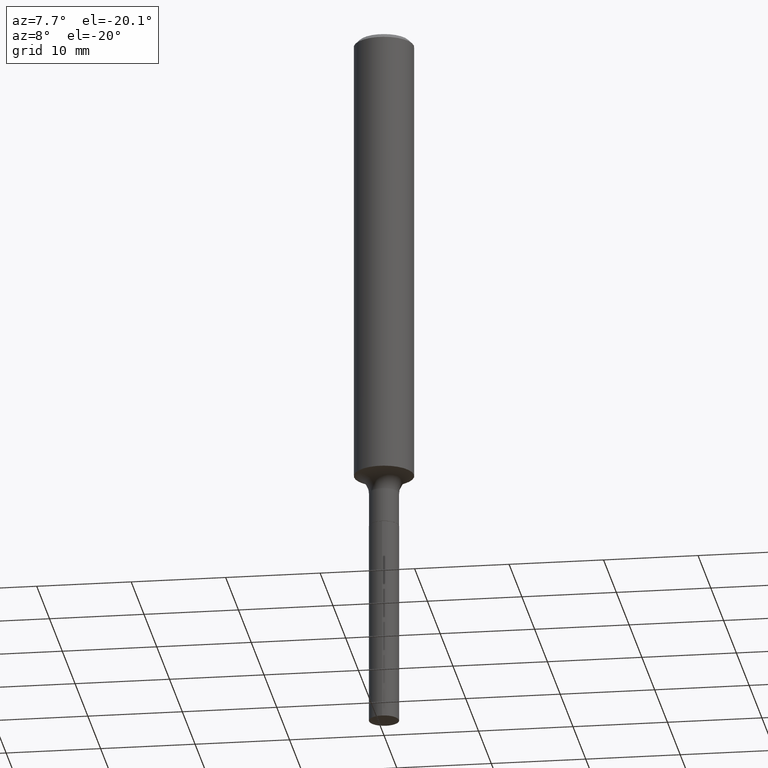
[diagram: clean part render]
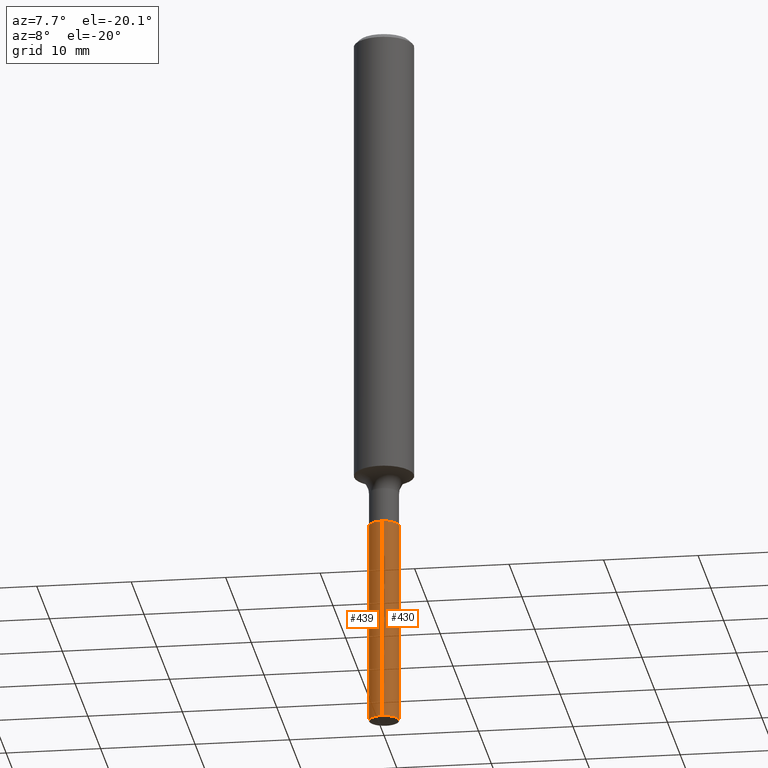
[diagram: same view with one multi-face feature highlighted, each face labeled with its STEP entity id]
A machine part, auxiliary view. The highlighted faces form ONE feature: a constant-radius fillet chain: 2 tangent blend faces with common blend radius 1.5875 mm. The faces share edges in the B-rep.
Their STEP definitions:
[1] entity #430 (Cylinder):
#29 = CARTESIAN_POINT ( 'NONE',  ( 7.276965430951519486E-29, -1.042175113617306376E-14, -2.980293825695064402 ) ) ;
#34 = CARTESIAN_POINT ( 'NONE',  ( 5.196621213143416389E-29, -7.419397845041685201E-15, -2.125000000000000444 ) ) ;
#35 = DIRECTION ( 'NONE',  ( -6.982962677686266711E-15, -1.000000000000000000, 0.000000000000000000 ) ) ;
#42 = LINE ( 'NONE', #165, #72 ) ;
#63 = CYLINDRICAL_SURFACE ( 'NONE', #429, 0.06250000000000002776 ) ;
#66 = FACE_OUTER_BOUND ( 'NONE', #240, .T. ) ;
#72 = VECTOR ( 'NONE', #465, 39.37007874015748143 ) ;
#85 = EDGE_CURVE ( 'NONE', #457, #103, #192, .T. ) ;
#94 = VERTEX_POINT ( 'NONE', #300 ) ;
#102 = CARTESIAN_POINT ( 'NONE',  ( 5.196621213143416389E-29, -7.419397845041685201E-15, -2.125000000000000444 ) ) ;
#103 = VERTEX_POINT ( 'NONE', #337 ) ;
#107 = DIRECTION ( 'NONE',  ( -2.432315252734916185E-29, 3.510317976037629950E-15, 1.000000000000000000 ) ) ;
#116 = CARTESIAN_POINT ( 'NONE',  ( -4.364351673553397525E-16, -0.06250000000000743849, -2.125000000000000000 ) ) ;
#122 = ORIENTED_EDGE ( 'NONE', *, *, #477, .T. ) ;
#140 = CARTESIAN_POINT ( 'NONE',  ( -4.364351673553398018E-16, -0.06250000000000743849, -2.125000000000000000 ) ) ;
#145 = DIRECTION ( 'NONE',  ( -6.982962677686265922E-15, -1.000000000000000000, 4.370956789862820361E-15 ) ) ;
#158 = AXIS2_PLACEMENT_3D ( 'NONE', #29, #451, #35 ) ;
#165 = CARTESIAN_POINT ( 'NONE',  ( 4.440892098501146810E-16, 0.06249999999999260314, -2.125000000000000888 ) ) ;
#170 = EDGE_CURVE ( 'NONE', #306, #103, #42, .T. ) ;
#186 = DIRECTION ( 'NONE',  ( -6.982962677686265922E-15, -1.000000000000000000, 4.370956789862819572E-15 ) ) ;
#192 = CIRCLE ( 'NONE', #261, 0.06250000000000001388 ) ;
#215 = ORIENTED_EDGE ( 'NONE', *, *, #85, .F. ) ;
#222 = DIRECTION ( 'NONE',  ( -2.432315252734916185E-29, 3.510317976037630345E-15, 1.000000000000000000 ) ) ;
#240 = EDGE_LOOP ( 'NONE', ( #122, #283, #215, #392 ) ) ;
#261 = AXIS2_PLACEMENT_3D ( 'NONE', #34, #325, #145 ) ;
#283 = ORIENTED_EDGE ( 'NONE', *, *, #170, .T. ) ;
#300 = CARTESIAN_POINT ( 'NONE',  ( -4.364351673553189956E-16, -0.06250000000001044997, -2.980293825695064402 ) ) ;
#306 = VERTEX_POINT ( 'NONE', #362 ) ;
#325 = DIRECTION ( 'NONE',  ( -2.432315252734916185E-29, 3.510317976037630345E-15, 1.000000000000000000 ) ) ;
#337 = CARTESIAN_POINT ( 'NONE',  ( 4.440892098501357830E-16, 0.06249999999999260314, -2.125000000000000888 ) ) ;
#360 = CIRCLE ( 'NONE', #158, 0.06250000000000002776 ) ;
#361 = LINE ( 'NONE', #140, #463 ) ;
#362 = CARTESIAN_POINT ( 'NONE',  ( 4.440892098501355858E-16, 0.06249999999998961248, -2.980293825695064402 ) ) ;
#392 = ORIENTED_EDGE ( 'NONE', *, *, #415, .F. ) ;
#415 = EDGE_CURVE ( 'NONE', #94, #457, #361, .T. ) ;
#429 = AXIS2_PLACEMENT_3D ( 'NONE', #102, #222, #186 ) ;
#430 = ADVANCED_FACE ( 'NONE', ( #66 ), #63, .T. ) ;
#451 = DIRECTION ( 'NONE',  ( -2.432315252734916185E-29, 3.510317976037630345E-15, 1.000000000000000000 ) ) ;
#457 = VERTEX_POINT ( 'NONE', #116 ) ;
#463 = VECTOR ( 'NONE', #107, 39.37007874015748143 ) ;
#465 = DIRECTION ( 'NONE',  ( -2.432315252734916185E-29, 3.510317976037629950E-15, 1.000000000000000000 ) ) ;
#477 = EDGE_CURVE ( 'NONE', #94, #306, #360, .T. ) ;
[2] entity #439 (Cylinder):
#14 = EDGE_LOOP ( 'NONE', ( #138, #166, #284, #460 ) ) ;
#42 = LINE ( 'NONE', #165, #72 ) ;
#47 = DIRECTION ( 'NONE',  ( -6.982962677686265922E-15, -1.000000000000000000, 4.370956789862820361E-15 ) ) ;
#72 = VECTOR ( 'NONE', #465, 39.37007874015748143 ) ;
#94 = VERTEX_POINT ( 'NONE', #300 ) ;
#103 = VERTEX_POINT ( 'NONE', #337 ) ;
#107 = DIRECTION ( 'NONE',  ( -2.432315252734916185E-29, 3.510317976037629950E-15, 1.000000000000000000 ) ) ;
#108 = AXIS2_PLACEMENT_3D ( 'NONE', #203, #125, #47 ) ;
#115 = EDGE_CURVE ( 'NONE', #103, #457, #167, .T. ) ;
#116 = CARTESIAN_POINT ( 'NONE',  ( -4.364351673553397525E-16, -0.06250000000000743849, -2.125000000000000000 ) ) ;
#125 = DIRECTION ( 'NONE',  ( -2.432315252734916185E-29, 3.510317976037630345E-15, 1.000000000000000000 ) ) ;
#138 = ORIENTED_EDGE ( 'NONE', *, *, #170, .F. ) ;
#140 = CARTESIAN_POINT ( 'NONE',  ( -4.364351673553398018E-16, -0.06250000000000743849, -2.125000000000000000 ) ) ;
#161 = DIRECTION ( 'NONE',  ( -6.982962677686265922E-15, -1.000000000000000000, 4.370956789862819572E-15 ) ) ;
#165 = CARTESIAN_POINT ( 'NONE',  ( 4.440892098501146810E-16, 0.06249999999999260314, -2.125000000000000888 ) ) ;
#166 = ORIENTED_EDGE ( 'NONE', *, *, #331, .T. ) ;
#167 = CIRCLE ( 'NONE', #108, 0.06250000000000001388 ) ;
#168 = AXIS2_PLACEMENT_3D ( 'NONE', #364, #333, #161 ) ;
#170 = EDGE_CURVE ( 'NONE', #306, #103, #42, .T. ) ;
#203 = CARTESIAN_POINT ( 'NONE',  ( 5.196621213143416389E-29, -7.419397845041685201E-15, -2.125000000000000444 ) ) ;
#212 = AXIS2_PLACEMENT_3D ( 'NONE', #402, #479, #255 ) ;
#229 = CYLINDRICAL_SURFACE ( 'NONE', #168, 0.06250000000000002776 ) ;
#255 = DIRECTION ( 'NONE',  ( -6.982962677686266711E-15, -1.000000000000000000, 0.000000000000000000 ) ) ;
#284 = ORIENTED_EDGE ( 'NONE', *, *, #415, .T. ) ;
#300 = CARTESIAN_POINT ( 'NONE',  ( -4.364351673553189956E-16, -0.06250000000001044997, -2.980293825695064402 ) ) ;
#306 = VERTEX_POINT ( 'NONE', #362 ) ;
#331 = EDGE_CURVE ( 'NONE', #306, #94, #474, .T. ) ;
#333 = DIRECTION ( 'NONE',  ( -2.432315252734916185E-29, 3.510317976037630345E-15, 1.000000000000000000 ) ) ;
#337 = CARTESIAN_POINT ( 'NONE',  ( 4.440892098501357830E-16, 0.06249999999999260314, -2.125000000000000888 ) ) ;
#361 = LINE ( 'NONE', #140, #463 ) ;
#362 = CARTESIAN_POINT ( 'NONE',  ( 4.440892098501355858E-16, 0.06249999999998961248, -2.980293825695064402 ) ) ;
#364 = CARTESIAN_POINT ( 'NONE',  ( 5.196621213143416389E-29, -7.419397845041685201E-15, -2.125000000000000444 ) ) ;
#367 = FACE_OUTER_BOUND ( 'NONE', #14, .T. ) ;
#402 = CARTESIAN_POINT ( 'NONE',  ( 7.276965430951519486E-29, -1.042175113617306376E-14, -2.980293825695064402 ) ) ;
#415 = EDGE_CURVE ( 'NONE', #94, #457, #361, .T. ) ;
#439 = ADVANCED_FACE ( 'NONE', ( #367 ), #229, .T. ) ;
#457 = VERTEX_POINT ( 'NONE', #116 ) ;
#460 = ORIENTED_EDGE ( 'NONE', *, *, #115, .F. ) ;
#463 = VECTOR ( 'NONE', #107, 39.37007874015748143 ) ;
#465 = DIRECTION ( 'NONE',  ( -2.432315252734916185E-29, 3.510317976037629950E-15, 1.000000000000000000 ) ) ;
#474 = CIRCLE ( 'NONE', #212, 0.06250000000000002776 ) ;
#479 = DIRECTION ( 'NONE',  ( -2.432315252734916185E-29, 3.510317976037630345E-15, 1.000000000000000000 ) ) ;